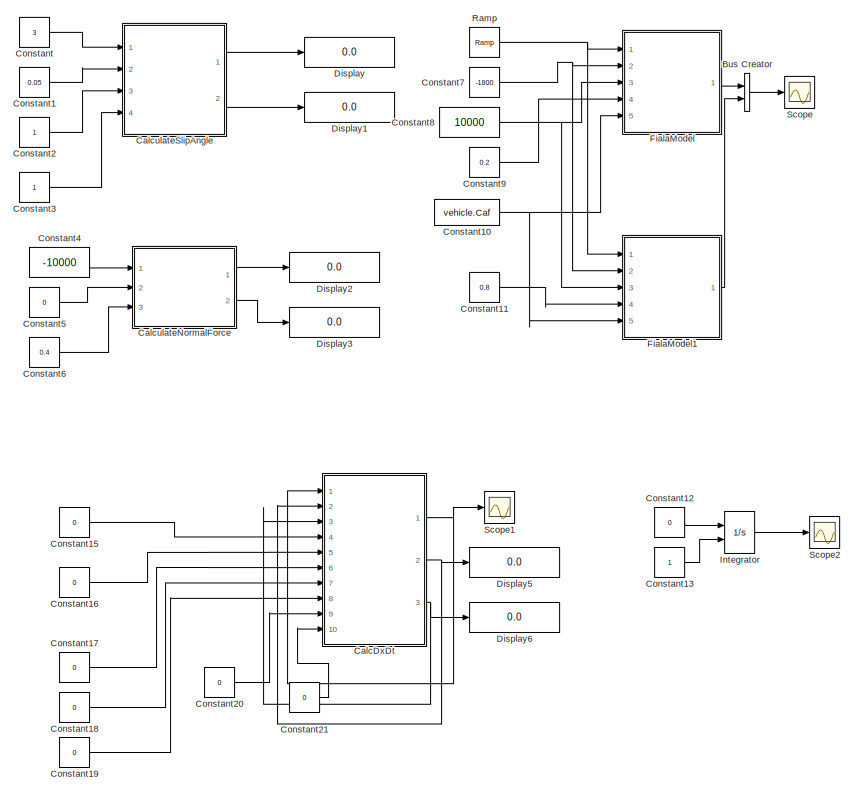
[diagram: root canvas - part 1/3, middle right region]
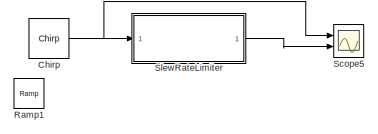
[diagram: root canvas - part 2/3, middle left region]
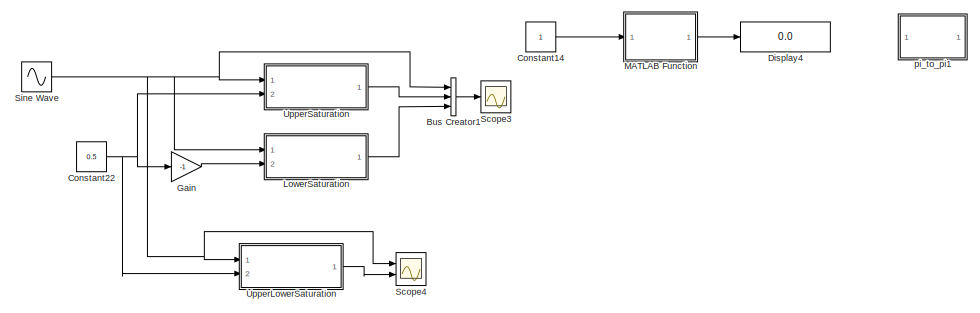
[diagram: root canvas - part 3/3, bottom center region]
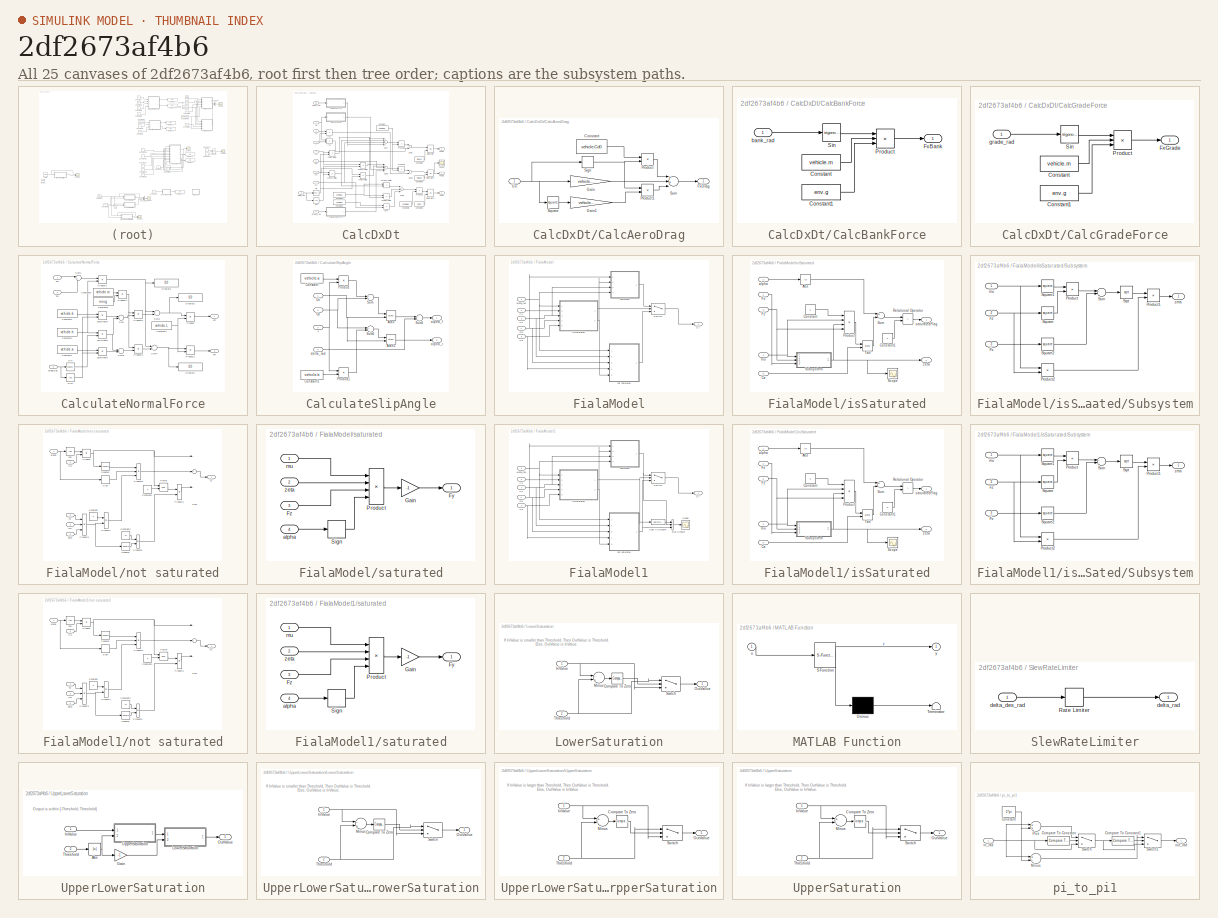
[diagram: thumbnail index - all 25 canvases of the model, root first then tree order]
MODEL slx_2df2673af4b6
KIND model
CONFIG AbsTol = auto
CONFIG EnableMultiTasking = off
CONFIG FixedStep = 0.001
CONFIG MaxStep = auto
CONFIG MinStep = auto
CONFIG RelTol = 1e-3
CONFIG SampleTimeConstraint = Unconstrained
CONFIG Solver = ode1
CONFIG SolverName = ode1
CONFIG StartTime = 0.0
CONFIG StopTime = 50.0
BLOCK [BusCreator] Bus Creator
  DisplayOption = bar
  InheritFromInputs = on
  Inputs = 2
  Ports = [2, 1]
BLOCK [BusCreator] Bus Creator1
  DisplayOption = bar
  InheritFromInputs = on
  Inputs = 3
  Ports = [3, 1]
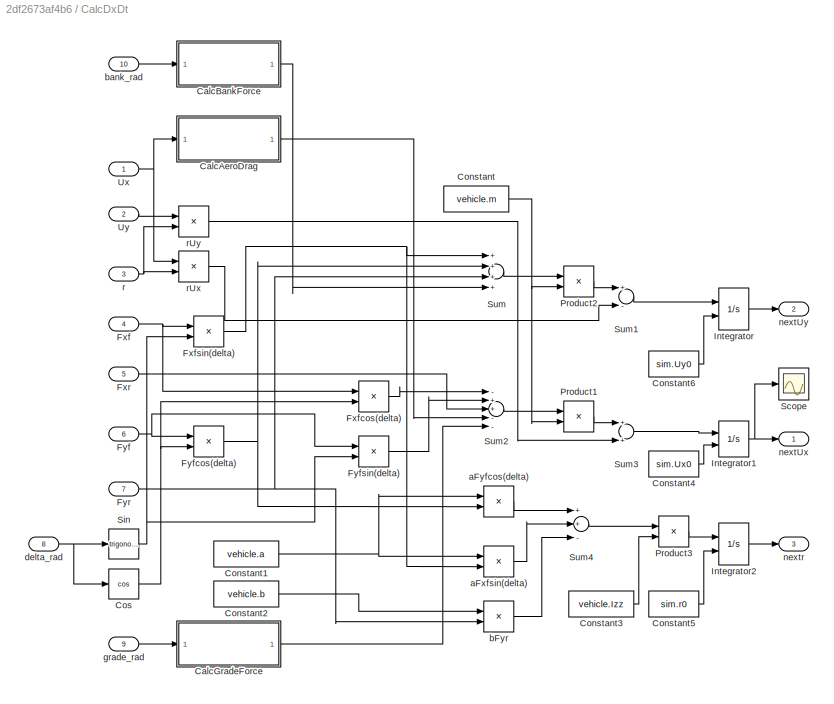
BLOCK [SubSystem] CalcDxDt
  Ports = [10, 3]
  RequestExecContextInheritance = off
BLOCK [SubSystem] CalcDxDt/CalcAeroDrag
  Ports = [1, 1]
  RequestExecContextInheritance = off
BLOCK [Constant] CalcDxDt/CalcAeroDrag/Constant
  Value = vehicle.Cd0
BLOCK [Outport] CalcDxDt/CalcAeroDrag/FxDrag
  IconDisplay = Port number
BLOCK [Gain] CalcDxDt/CalcAeroDrag/Gain
  Gain = vehicle.Cd1
  OutDataTypeStr = Inherit: Inherit via internal rule
  ParamDataTypeStr = Inherit: Inherit via internal rule
  SaturateOnIntegerOverflow = off
BLOCK [Gain] CalcDxDt/CalcAeroDrag/Gain1
  Gain = vehicle.Cd2
  OutDataTypeStr = Inherit: Inherit via internal rule
  ParamDataTypeStr = Inherit: Inherit via internal rule
  SaturateOnIntegerOverflow = off
BLOCK [Product] CalcDxDt/CalcAeroDrag/Product
  InputSameDT = off
  OutDataTypeStr = Inherit: Inherit via internal rule
  Ports = [2, 1]
  RndMeth = Floor
  SaturateOnIntegerOverflow = off
BLOCK [Product] CalcDxDt/CalcAeroDrag/Product1
  InputSameDT = off
  OutDataTypeStr = Inherit: Inherit via internal rule
  Ports = [2, 1]
  RndMeth = Floor
  SaturateOnIntegerOverflow = off
BLOCK [Signum] CalcDxDt/CalcAeroDrag/Sign
BLOCK [Math] CalcDxDt/CalcAeroDrag/Square
  Operator = square
  Ports = [1, 1]
BLOCK [Sum] CalcDxDt/CalcAeroDrag/Sum
  InputSameDT = off
  Inputs = 3
  OutDataTypeStr = Inherit: Inherit via internal rule
  Ports = [3, 1]
  SaturateOnIntegerOverflow = off
BLOCK [Inport] CalcDxDt/CalcAeroDrag/Ux
  IconDisplay = Port number
BLOCK [SubSystem] CalcDxDt/CalcBankForce
  Ports = [1, 1]
  RequestExecContextInheritance = off
BLOCK [Constant] CalcDxDt/CalcBankForce/Constant
  Value = vehicle.m
BLOCK [Constant] CalcDxDt/CalcBankForce/Constant1
  Value = env.g
BLOCK [Outport] CalcDxDt/CalcBankForce/FxBank
  IconDisplay = Port number
BLOCK [Product] CalcDxDt/CalcBankForce/Product
  InputSameDT = off
  Inputs = 3
  OutDataTypeStr = Inherit: Inherit via internal rule
  Ports = [3, 1]
  RndMeth = Floor
  SaturateOnIntegerOverflow = off
BLOCK [Trigonometry] CalcDxDt/CalcBankForce/Sin
  Ports = [1, 1]
BLOCK [Inport] CalcDxDt/CalcBankForce/bank_rad
  IconDisplay = Port number
BLOCK [SubSystem] CalcDxDt/CalcGradeForce
  Ports = [1, 1]
  RequestExecContextInheritance = off
BLOCK [Constant] CalcDxDt/CalcGradeForce/Constant
  Value = vehicle.m
BLOCK [Constant] CalcDxDt/CalcGradeForce/Constant1
  Value = env.g
BLOCK [Outport] CalcDxDt/CalcGradeForce/FxGrade
  IconDisplay = Port number
BLOCK [Product] CalcDxDt/CalcGradeForce/Product
  InputSameDT = off
  Inputs = 3
  OutDataTypeStr = Inherit: Inherit via internal rule
  Ports = [3, 1]
  RndMeth = Floor
  SaturateOnIntegerOverflow = off
BLOCK [Trigonometry] CalcDxDt/CalcGradeForce/Sin
  Ports = [1, 1]
BLOCK [Inport] CalcDxDt/CalcGradeForce/grade_rad
  IconDisplay = Port number
BLOCK [Constant] CalcDxDt/Constant
  Value = vehicle.m
BLOCK [Constant] CalcDxDt/Constant1
  Value = vehicle.a
BLOCK [Constant] CalcDxDt/Constant2
  Value = vehicle.b
BLOCK [Constant] CalcDxDt/Constant3
  Value = vehicle.Izz
BLOCK [Constant] CalcDxDt/Constant4
  Value = sim.Ux0
BLOCK [Constant] CalcDxDt/Constant5
  Value = sim.r0
BLOCK [Constant] CalcDxDt/Constant6
  Value = sim.Uy0
BLOCK [Trigonometry] CalcDxDt/Cos
  Operator = cos
  Ports = [1, 1]
BLOCK [Inport] CalcDxDt/Fxf
  IconDisplay = Port number
  Port = 4
BLOCK [Product] CalcDxDt/Fxfcos(delta)
  InputSameDT = off
  OutDataTypeStr = Inherit: Inherit via internal rule
  Ports = [2, 1]
  RndMeth = Floor
  SaturateOnIntegerOverflow = off
BLOCK [Product] CalcDxDt/Fxfsin(delta)
  InputSameDT = off
  OutDataTypeStr = Inherit: Inherit via internal rule
  Ports = [2, 1]
  RndMeth = Floor
  SaturateOnIntegerOverflow = off
BLOCK [Inport] CalcDxDt/Fxr
  IconDisplay = Port number
  Port = 5
BLOCK [Inport] CalcDxDt/Fyf
  IconDisplay = Port number
  Port = 6
BLOCK [Product] CalcDxDt/Fyfcos(delta)
  InputSameDT = off
  OutDataTypeStr = Inherit: Inherit via internal rule
  Ports = [2, 1]
  RndMeth = Floor
  SaturateOnIntegerOverflow = off
BLOCK [Product] CalcDxDt/Fyfsin(delta)
  InputSameDT = off
  OutDataTypeStr = Inherit: Inherit via internal rule
  Ports = [2, 1]
  RndMeth = Floor
  SaturateOnIntegerOverflow = off
BLOCK [Inport] CalcDxDt/Fyr
  IconDisplay = Port number
  Port = 7
BLOCK [Integrator] CalcDxDt/Integrator
  InitialConditionSource = external
  Ports = [2, 1]
BLOCK [Integrator] CalcDxDt/Integrator1
  InitialConditionSource = external
  Ports = [2, 1]
BLOCK [Integrator] CalcDxDt/Integrator2
  InitialCondition = sim.r0
  InitialConditionSource = external
  Ports = [2, 1]
BLOCK [Product] CalcDxDt/Product1
  InputSameDT = off
  Inputs = */
  OutDataTypeStr = Inherit: Inherit via internal rule
  Ports = [2, 1]
  RndMeth = Floor
  SaturateOnIntegerOverflow = off
BLOCK [Product] CalcDxDt/Product2
  InputSameDT = off
  Inputs = */
  OutDataTypeStr = Inherit: Inherit via internal rule
  Ports = [2, 1]
  RndMeth = Floor
  SaturateOnIntegerOverflow = off
BLOCK [Product] CalcDxDt/Product3
  InputSameDT = off
  Inputs = */
  OutDataTypeStr = Inherit: Inherit via internal rule
  Ports = [2, 1]
  RndMeth = Floor
  SaturateOnIntegerOverflow = off
BLOCK [Scope] CalcDxDt/Scope
  Floating = off
  NumInputPorts = 1
  Ports = [1]
  ScopeSpecificationString = Simulink.scopes.TimeScopeBlockCfg('CurrentConfiguration', extmgr.ConfigurationSet(extmgr.Configuration('Core','General UI',true),extmgr.Configuration('Core','Source UI',true),extmgr.Configuration('Sources','WiredSimulink',true,'DataLoggingVariableName','ScopeData4'),extmgr.Configuration('Visuals','Time Domain',true),extmgr.Configuration('Tools','Plot Navigation',true),extmgr.Configuration('Tools',...<+40ch>
BLOCK [Trigonometry] CalcDxDt/Sin
  Ports = [1, 1]
BLOCK [Sum] CalcDxDt/Sum
  InputSameDT = off
  Inputs = ++++
  OutDataTypeStr = Inherit: Inherit via internal rule
  Ports = [4, 1]
  SaturateOnIntegerOverflow = off
BLOCK [Sum] CalcDxDt/Sum1
  InputSameDT = off
  Inputs = +-
  OutDataTypeStr = Inherit: Inherit via internal rule
  Ports = [2, 1]
  SaturateOnIntegerOverflow = off
BLOCK [Sum] CalcDxDt/Sum2
  InputSameDT = off
  Inputs = -++--
  OutDataTypeStr = Inherit: Inherit via internal rule
  Ports = [5, 1]
  SaturateOnIntegerOverflow = off
BLOCK [Sum] CalcDxDt/Sum3
  InputSameDT = off
  OutDataTypeStr = Inherit: Inherit via internal rule
  Ports = [2, 1]
  SaturateOnIntegerOverflow = off
BLOCK [Sum] CalcDxDt/Sum4
  InputSameDT = off
  Inputs = ++-
  OutDataTypeStr = Inherit: Inherit via internal rule
  Ports = [3, 1]
  SaturateOnIntegerOverflow = off
BLOCK [Inport] CalcDxDt/Ux
  IconDisplay = Port number
BLOCK [Inport] CalcDxDt/Uy
  IconDisplay = Port number
  Port = 2
BLOCK [Product] CalcDxDt/aFxfsin(delta)
  InputSameDT = off
  OutDataTypeStr = Inherit: Inherit via internal rule
  Ports = [2, 1]
  RndMeth = Floor
  SaturateOnIntegerOverflow = off
BLOCK [Product] CalcDxDt/aFyfcos(delta)
  InputSameDT = off
  OutDataTypeStr = Inherit: Inherit via internal rule
  Ports = [2, 1]
  RndMeth = Floor
  SaturateOnIntegerOverflow = off
BLOCK [Product] CalcDxDt/bFyr
  InputSameDT = off
  OutDataTypeStr = Inherit: Inherit via internal rule
  Ports = [2, 1]
  RndMeth = Floor
  SaturateOnIntegerOverflow = off
BLOCK [Inport] CalcDxDt/bank_rad
  IconDisplay = Port number
  Port = 10
BLOCK [Inport] CalcDxDt/delta_rad
  IconDisplay = Port number
  Port = 8
BLOCK [Inport] CalcDxDt/grade_rad
  IconDisplay = Port number
  Port = 9
BLOCK [Outport] CalcDxDt/nextUx 
  IconDisplay = Port number
BLOCK [Outport] CalcDxDt/nextUy
  IconDisplay = Port number
  Port = 2
BLOCK [Outport] CalcDxDt/nextr
  IconDisplay = Port number
  Port = 3
BLOCK [Inport] CalcDxDt/r
  IconDisplay = Port number
  Port = 3
BLOCK [Product] CalcDxDt/rUx
  InputSameDT = off
  OutDataTypeStr = Inherit: Inherit via internal rule
  Ports = [2, 1]
  RndMeth = Floor
  SaturateOnIntegerOverflow = off
BLOCK [Product] CalcDxDt/rUy
  InputSameDT = off
  OutDataTypeStr = Inherit: Inherit via internal rule
  Ports = [2, 1]
  RndMeth = Floor
  SaturateOnIntegerOverflow = off
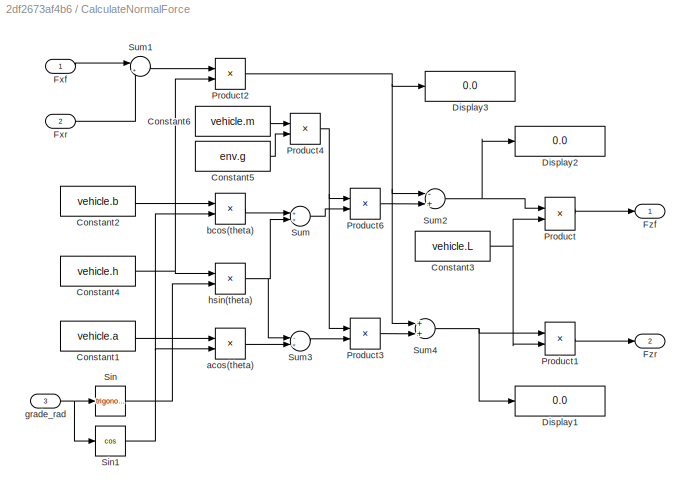
BLOCK [SubSystem] CalculateNormalForce
  Ports = [3, 2]
  RequestExecContextInheritance = off
BLOCK [Constant] CalculateNormalForce/Constant1
  Value = vehicle.a
BLOCK [Constant] CalculateNormalForce/Constant2
  Value = vehicle.b
BLOCK [Constant] CalculateNormalForce/Constant3
  Value = vehicle.L
BLOCK [Constant] CalculateNormalForce/Constant4
  Value = vehicle.h
BLOCK [Constant] CalculateNormalForce/Constant5
  Value = env.g
BLOCK [Constant] CalculateNormalForce/Constant6
  Value = vehicle.m
BLOCK [Display] CalculateNormalForce/Display1
  Decimation = 1
  Ports = [1]
BLOCK [Display] CalculateNormalForce/Display2
  Decimation = 1
  Ports = [1]
BLOCK [Display] CalculateNormalForce/Display3
  Decimation = 1
  Ports = [1]
BLOCK [Inport] CalculateNormalForce/Fxf
  IconDisplay = Port number
BLOCK [Inport] CalculateNormalForce/Fxr
  IconDisplay = Port number
  Port = 2
BLOCK [Outport] CalculateNormalForce/Fzf
  IconDisplay = Port number
BLOCK [Outport] CalculateNormalForce/Fzr
  IconDisplay = Port number
  Port = 2
BLOCK [Product] CalculateNormalForce/Product
  InputSameDT = off
  Inputs = */
  OutDataTypeStr = Inherit: Inherit via internal rule
  Ports = [2, 1]
  RndMeth = Floor
  SaturateOnIntegerOverflow = off
BLOCK [Product] CalculateNormalForce/Product1
  InputSameDT = off
  Inputs = */
  OutDataTypeStr = Inherit: Inherit via internal rule
  Ports = [2, 1]
  RndMeth = Floor
  SaturateOnIntegerOverflow = off
BLOCK [Product] CalculateNormalForce/Product2
  InputSameDT = off
  OutDataTypeStr = Inherit: Inherit via internal rule
  Ports = [2, 1]
  RndMeth = Floor
  SaturateOnIntegerOverflow = off
BLOCK [Product] CalculateNormalForce/Product3
  InputSameDT = off
  OutDataTypeStr = Inherit: Inherit via internal rule
  Ports = [2, 1]
  RndMeth = Floor
  SaturateOnIntegerOverflow = off
BLOCK [Product] CalculateNormalForce/Product4
  InputSameDT = off
  OutDataTypeStr = Inherit: Inherit via internal rule
  Ports = [2, 1]
  RndMeth = Floor
  SaturateOnIntegerOverflow = off
BLOCK [Product] CalculateNormalForce/Product6
  InputSameDT = off
  OutDataTypeStr = Inherit: Inherit via internal rule
  Ports = [2, 1]
  RndMeth = Floor
  SaturateOnIntegerOverflow = off
BLOCK [Trigonometry] CalculateNormalForce/Sin
  Ports = [1, 1]
BLOCK [Trigonometry] CalculateNormalForce/Sin1
  Operator = cos
  Ports = [1, 1]
BLOCK [Sum] CalculateNormalForce/Sum
  InputSameDT = off
  OutDataTypeStr = Inherit: Inherit via internal rule
  Ports = [2, 1]
  SaturateOnIntegerOverflow = off
BLOCK [Sum] CalculateNormalForce/Sum1
  IconShape = round
  InputSameDT = off
  Inputs = |++
  OutDataTypeStr = Inherit: Inherit via internal rule
  Ports = [2, 1]
  SaturateOnIntegerOverflow = off
BLOCK [Sum] CalculateNormalForce/Sum2
  InputSameDT = off
  Inputs = -+
  OutDataTypeStr = Inherit: Inherit via internal rule
  Ports = [2, 1]
  SaturateOnIntegerOverflow = off
BLOCK [Sum] CalculateNormalForce/Sum3
  InputSameDT = off
  Inputs = -+
  OutDataTypeStr = Inherit: Inherit via internal rule
  Ports = [2, 1]
  SaturateOnIntegerOverflow = off
BLOCK [Sum] CalculateNormalForce/Sum4
  InputSameDT = off
  OutDataTypeStr = Inherit: Inherit via internal rule
  Ports = [2, 1]
  SaturateOnIntegerOverflow = off
BLOCK [Product] CalculateNormalForce/acos(theta)
  InputSameDT = off
  OutDataTypeStr = Inherit: Inherit via internal rule
  Ports = [2, 1]
  RndMeth = Floor
  SaturateOnIntegerOverflow = off
BLOCK [Product] CalculateNormalForce/bcos(theta)
  InputSameDT = off
  OutDataTypeStr = Inherit: Inherit via internal rule
  Ports = [2, 1]
  RndMeth = Floor
  SaturateOnIntegerOverflow = off
BLOCK [Inport] CalculateNormalForce/grade_rad
  IconDisplay = Port number
  Port = 3
BLOCK [Product] CalculateNormalForce/hsin(theta)
  InputSameDT = off
  OutDataTypeStr = Inherit: Inherit via internal rule
  Ports = [2, 1]
  RndMeth = Floor
  SaturateOnIntegerOverflow = off
BLOCK [SubSystem] CalculateSlipAngle
  Ports = [4, 2]
  RequestExecContextInheritance = off
BLOCK [Trigonometry] CalculateSlipAngle/Atan
  Operator = atan2
  Ports = [2, 1]
BLOCK [Trigonometry] CalculateSlipAngle/Atan1
  Operator = atan2
  Ports = [2, 1]
BLOCK [Constant] CalculateSlipAngle/Constant
  Value = vehicle.a
BLOCK [Constant] CalculateSlipAngle/Constant1
  Value = vehicle.b
BLOCK [Product] CalculateSlipAngle/Product
  InputSameDT = off
  OutDataTypeStr = Inherit: Inherit via internal rule
  Ports = [2, 1]
  RndMeth = Floor
  SaturateOnIntegerOverflow = off
BLOCK [Product] CalculateSlipAngle/Product1
  InputSameDT = off
  OutDataTypeStr = Inherit: Inherit via internal rule
  Ports = [2, 1]
  RndMeth = Floor
  SaturateOnIntegerOverflow = off
BLOCK [Sum] CalculateSlipAngle/Sum
  InputSameDT = off
  OutDataTypeStr = Inherit: Inherit via internal rule
  Ports = [2, 1]
  SaturateOnIntegerOverflow = off
BLOCK [Sum] CalculateSlipAngle/Sum1
  InputSameDT = off
  Inputs = +-
  OutDataTypeStr = Inherit: Inherit via internal rule
  Ports = [2, 1]
  SaturateOnIntegerOverflow = off
BLOCK [Sum] CalculateSlipAngle/Sum2
  InputSameDT = off
  Inputs = +-
  OutDataTypeStr = Inherit: Inherit via internal rule
  Ports = [2, 1]
  SaturateOnIntegerOverflow = off
BLOCK [Inport] CalculateSlipAngle/Ux
  IconDisplay = Port number
BLOCK [Inport] CalculateSlipAngle/Uy
  IconDisplay = Port number
  Port = 2
BLOCK [Outport] CalculateSlipAngle/alpha_f
  IconDisplay = Port number
BLOCK [Outport] CalculateSlipAngle/alpha_r
  IconDisplay = Port number
  Port = 2
BLOCK [Inport] CalculateSlipAngle/delta_rad
  IconDisplay = Port number
  Port = 4
BLOCK [Inport] CalculateSlipAngle/r
  IconDisplay = Port number
  Port = 3
BLOCK [Reference] Chirp  REF=dspsrcs4/Chirp
  Ports = [0, 1]
  SourceBlock = dspsrcs4/Chirp
  SourceProductBaseCode = DS
  SourceProductName = DSP System Toolbox
  SourceType = Chirp
BLOCK [Constant] Constant
  Value = 3
BLOCK [Constant] Constant1
  Value = 0.05
BLOCK [Constant] Constant10
  Value = vehicle.Caf
BLOCK [Constant] Constant11
  Value = 0.8
BLOCK [Constant] Constant12
  Value = 0
BLOCK [Constant] Constant13
BLOCK [Constant] Constant14
BLOCK [Constant] Constant15
  Value = 0
BLOCK [Constant] Constant16
  Value = 0
BLOCK [Constant] Constant17
  Value = 0
BLOCK [Constant] Constant18
  Value = 0
BLOCK [Constant] Constant19
  Value = 0
BLOCK [Constant] Constant2
BLOCK [Constant] Constant20
  Value = 0
BLOCK [Constant] Constant21
  Value = 0
BLOCK [Constant] Constant22
  Value = 0.5
BLOCK [Constant] Constant3
BLOCK [Constant] Constant4
  Value = -10000
BLOCK [Constant] Constant5
  Value = 0
BLOCK [Constant] Constant6
  Value = 0.4
BLOCK [Constant] Constant7
  Value = -1800
BLOCK [Constant] Constant8
  Value = 10000
BLOCK [Constant] Constant9
  Value = 0.2
BLOCK [Display] Display
  Decimation = 1
  Ports = [1]
BLOCK [Display] Display1
  Decimation = 1
  Ports = [1]
BLOCK [Display] Display2
  Decimation = 1
  Ports = [1]
BLOCK [Display] Display3
  Decimation = 1
  Ports = [1]
BLOCK [Display] Display4
  Decimation = 1
  Ports = [1]
BLOCK [Display] Display5
  Decimation = 1
  Ports = [1]
BLOCK [Display] Display6
  Decimation = 1
  Ports = [1]
BLOCK [SubSystem] FialaModel
  Ports = [5, 1]
  RequestExecContextInheritance = off
BLOCK [Inport] FialaModel/Ca
  IconDisplay = Port number
  Port = 5
BLOCK [Inport] FialaModel/Fx
  IconDisplay = Port number
  Port = 2
BLOCK [Outport] FialaModel/Fy
  IconDisplay = Port number
BLOCK [Inport] FialaModel/Fz
  IconDisplay = Port number
  Port = 3
BLOCK [Switch] FialaModel/Switch
  Criteria = u2 > Threshold
  InputSameDT = off
  SaturateOnIntegerOverflow = off
BLOCK [Inport] FialaModel/alpha_rad
  IconDisplay = Port number
BLOCK [SubSystem] FialaModel/isSaturated
  Ports = [5, 2]
  RequestExecContextInheritance = off
BLOCK [Abs] FialaModel/isSaturated/Abs
  SaturateOnIntegerOverflow = off
BLOCK [Inport] FialaModel/isSaturated/Ca
  IconDisplay = Port number
  Port = 5
BLOCK [Constant] FialaModel/isSaturated/Constant
  Value = 3
BLOCK [Constant] FialaModel/isSaturated/Constant1
  Value = 0
BLOCK [Inport] FialaModel/isSaturated/Fx
  IconDisplay = Port number
  Port = 2
BLOCK [Inport] FialaModel/isSaturated/Fz
  IconDisplay = Port number
  Port = 3
BLOCK [Product] FialaModel/isSaturated/Product
  InputSameDT = off
  Inputs = 4
  OutDataTypeStr = Inherit: Inherit via internal rule
  Ports = [4, 1]
  RndMeth = Floor
  SaturateOnIntegerOverflow = off
BLOCK [RelationalOperator] FialaModel/isSaturated/Relational Operator
  InputSameDT = off
  Operator = >
  OutDataTypeStr = boolean
  Ports = [2, 1]
  RndMeth = Simplest
BLOCK [Scope] FialaModel/isSaturated/Scope
  Floating = off
  NumInputPorts = 1
  Ports = [1]
  ScopeSpecificationString = Simulink.scopes.TimeScopeBlockCfg('CurrentConfiguration', extmgr.ConfigurationSet(extmgr.Configuration('Core','General UI',true),extmgr.Configuration('Core','Source UI',true),extmgr.Configuration('Sources','WiredSimulink',true,'DataLoggingVariableName','ScopeData2'),extmgr.Configuration('Visuals','Time Domain',true,'SerializedDisplays',{struct('MinYLimReal','0.33589','MaxYLimReal','0.53589','YLabe...<+1366ch>
BLOCK [SubSystem] FialaModel/isSaturated/Subsystem
  Ports = [3, 1]
  RequestExecContextInheritance = off
BLOCK [Inport] FialaModel/isSaturated/Subsystem/Fx
  IconDisplay = Port number
  Port = 3
BLOCK [Inport] FialaModel/isSaturated/Subsystem/Fz
  IconDisplay = Port number
  Port = 2
BLOCK [Product] FialaModel/isSaturated/Subsystem/Product
  InputSameDT = off
  OutDataTypeStr = Inherit: Inherit via internal rule
  Ports = [2, 1]
  RndMeth = Floor
  SaturateOnIntegerOverflow = off
BLOCK [Product] FialaModel/isSaturated/Subsystem/Product1
  InputSameDT = off
  Inputs = */
  OutDataTypeStr = Inherit: Inherit via internal rule
  Ports = [2, 1]
  RndMeth = Floor
  SaturateOnIntegerOverflow = off
BLOCK [Product] FialaModel/isSaturated/Subsystem/Product2
  InputSameDT = off
  OutDataTypeStr = Inherit: Inherit via internal rule
  Ports = [2, 1]
  RndMeth = Floor
  SaturateOnIntegerOverflow = off
BLOCK [Sqrt] FialaModel/isSaturated/Subsystem/Sqrt
BLOCK [Math] FialaModel/isSaturated/Subsystem/Square
  Operator = square
  Ports = [1, 1]
BLOCK [Math] FialaModel/isSaturated/Subsystem/Square1
  Operator = square
  Ports = [1, 1]
BLOCK [Math] FialaModel/isSaturated/Subsystem/Square2
  Operator = square
  Ports = [1, 1]
BLOCK [Sum] FialaModel/isSaturated/Subsystem/Sum
  InputSameDT = off
  Inputs = +-
  OutDataTypeStr = Inherit: Inherit via internal rule
  Ports = [2, 1]
  SaturateOnIntegerOverflow = off
BLOCK [Inport] FialaModel/isSaturated/Subsystem/mu
  IconDisplay = Port number
BLOCK [Outport] FialaModel/isSaturated/Subsystem/zeta
  IconDisplay = Port number
BLOCK [Sum] FialaModel/isSaturated/Sum
  InputSameDT = off
  Inputs = +-
  OutDataTypeStr = Inherit: Inherit via internal rule
  Ports = [2, 1]
  SaturateOnIntegerOverflow = off
BLOCK [Trigonometry] FialaModel/isSaturated/Tan
  Operator = atan2
  Ports = [2, 1]
BLOCK [Inport] FialaModel/isSaturated/alpha
  IconDisplay = Port number
BLOCK [Inport] FialaModel/isSaturated/mu
  IconDisplay = Port number
  Port = 4
BLOCK [Outport] FialaModel/isSaturated/saturatedFlag
  IconDisplay = Port number
BLOCK [Outport] FialaModel/isSaturated/zeta
  IconDisplay = Port number
  Port = 2
BLOCK [Inport] FialaModel/mu
  IconDisplay = Port number
  Port = 4
BLOCK [SubSystem] FialaModel/not saturated
  Ports = [5, 1]
  RequestExecContextInheritance = off
BLOCK [Inport] FialaModel/not saturated/Ca
  IconDisplay = Port number
  Port = 4
BLOCK [Constant] FialaModel/not saturated/Constant
  Value = 3
BLOCK [Constant] FialaModel/not saturated/Constant1
  Value = 3
BLOCK [Constant] FialaModel/not saturated/Constant2
  Value = 27
BLOCK [Outport] FialaModel/not saturated/Fy
  IconDisplay = Port number
BLOCK [Inport] FialaModel/not saturated/Fz
  IconDisplay = Port number
  Port = 2
BLOCK [Math] FialaModel/not saturated/Power
  Operator = pow
  Ports = [2, 1]
BLOCK [Product] FialaModel/not saturated/Product
  InputSameDT = off
  OutDataTypeStr = Inherit: Inherit via internal rule
  Ports = [2, 1]
  RndMeth = Floor
  SaturateOnIntegerOverflow = off
BLOCK [Product] FialaModel/not saturated/Product1
  InputSameDT = off
  Inputs = */
  OutDataTypeStr = Inherit: Inherit via internal rule
  Ports = [2, 1]
  RndMeth = Floor
  SaturateOnIntegerOverflow = off
BLOCK [Product] FialaModel/not saturated/Product2
  InputSameDT = off
  Inputs = **/
  OutDataTypeStr = Inherit: Inherit via internal rule
  Ports = [3, 1]
  RndMeth = Floor
  SaturateOnIntegerOverflow = off
BLOCK [Product] FialaModel/not saturated/Product3
  InputSameDT = off
  Inputs = ***
  OutDataTypeStr = Inherit: Inherit via internal rule
  Ports = [3, 1]
  RndMeth = Floor
  SaturateOnIntegerOverflow = off
BLOCK [Product] FialaModel/not saturated/Product4
  InputSameDT = off
  OutDataTypeStr = Inherit: Inherit via internal rule
  Ports = [2, 1]
  RndMeth = Floor
  SaturateOnIntegerOverflow = off
BLOCK [Product] FialaModel/not saturated/Product5
  InputSameDT = off
  OutDataTypeStr = Inherit: Inherit via internal rule
  Ports = [2, 1]
  RndMeth = Floor
  SaturateOnIntegerOverflow = off
BLOCK [Signum] FialaModel/not saturated/Sign
BLOCK [Math] FialaModel/not saturated/Square1
  Operator = square
  Ports = [1, 1]
BLOCK [Math] FialaModel/not saturated/Square2
  Operator = square
  Ports = [1, 1]
BLOCK [Sum] FialaModel/not saturated/Sum
  InputSameDT = off
  Inputs = -+-
  OutDataTypeStr = Inherit: Inherit via internal rule
  Ports = [3, 1]
  SaturateOnIntegerOverflow = off
BLOCK [Trigonometry] FialaModel/not saturated/Tan
  Operator = tan
  Ports = [1, 1]
BLOCK [Inport] FialaModel/not saturated/alpha
  IconDisplay = Port number
BLOCK [Inport] FialaModel/not saturated/mu
  IconDisplay = Port number
  Port = 3
BLOCK [Inport] FialaModel/not saturated/zeta
  IconDisplay = Port number
  Port = 5
BLOCK [SubSystem] FialaModel/saturated
  Ports = [4, 1]
  RequestExecContextInheritance = off
BLOCK [Outport] FialaModel/saturated/Fy
  IconDisplay = Port number
BLOCK [Inport] FialaModel/saturated/Fz
  IconDisplay = Port number
  Port = 3
BLOCK [Gain] FialaModel/saturated/Gain
  Gain = -1
  OutDataTypeStr = Inherit: Inherit via internal rule
  ParamDataTypeStr = Inherit: Inherit via internal rule
  SaturateOnIntegerOverflow = off
BLOCK [Product] FialaModel/saturated/Product
  InputSameDT = off
  Inputs = 4
  OutDataTypeStr = Inherit: Inherit via internal rule
  Ports = [4, 1]
  RndMeth = Floor
  SaturateOnIntegerOverflow = off
BLOCK [Signum] FialaModel/saturated/Sign
BLOCK [Inport] FialaModel/saturated/alpha
  IconDisplay = Port number
  Port = 4
BLOCK [Inport] FialaModel/saturated/mu
  IconDisplay = Port number
BLOCK [Inport] FialaModel/saturated/zeta
  IconDisplay = Port number
  Port = 2
BLOCK [SubSystem] FialaModel1
  Ports = [5, 1]
  RequestExecContextInheritance = off
BLOCK [BusCreator] FialaModel1/Bus Creator
  DisplayOption = bar
  InheritFromInputs = on
  Inputs = 3
  Ports = [3, 1]
BLOCK [Inport] FialaModel1/Ca
  IconDisplay = Port number
  Port = 5
BLOCK [DataTypeConversion] FialaModel1/Cast To Double
  OutDataTypeStr = double
  RndMeth = Floor
  SaturateOnIntegerOverflow = off
BLOCK [Inport] FialaModel1/Fx
  IconDisplay = Port number
  Port = 2
BLOCK [Outport] FialaModel1/Fy
  IconDisplay = Port number
BLOCK [Inport] FialaModel1/Fz
  IconDisplay = Port number
  Port = 3
BLOCK [Scope] FialaModel1/Scope
  Floating = off
  NumInputPorts = 1
  Ports = [1]
  ScopeSpecificationString = Simulink.scopes.TimeScopeBlockCfg('CurrentConfiguration', extmgr.ConfigurationSet(extmgr.Configuration('Core','General UI',true),extmgr.Configuration('Core','Source UI',true),extmgr.Configuration('Sources','WiredSimulink',true,'DataLoggingVariableName','ScopeData1'),extmgr.Configuration('Visuals','Time Domain',true,'SerializedDisplays',{struct('MinYLimReal','-7.88068','MaxYLimReal','8.38222','YLab...<+1449ch>
BLOCK [Switch] FialaModel1/Switch
  Criteria = u2 > Threshold
  InputSameDT = off
  SaturateOnIntegerOverflow = off
BLOCK [Inport] FialaModel1/alpha_rad
  IconDisplay = Port number
BLOCK [SubSystem] FialaModel1/isSaturated
  Ports = [5, 2]
  RequestExecContextInheritance = off
BLOCK [Abs] FialaModel1/isSaturated/Abs
  SaturateOnIntegerOverflow = off
BLOCK [Inport] FialaModel1/isSaturated/Ca
  IconDisplay = Port number
  Port = 5
BLOCK [Constant] FialaModel1/isSaturated/Constant
  Value = 3
BLOCK [Constant] FialaModel1/isSaturated/Constant1
  Value = 0
BLOCK [Inport] FialaModel1/isSaturated/Fx
  IconDisplay = Port number
  Port = 2
BLOCK [Inport] FialaModel1/isSaturated/Fz
  IconDisplay = Port number
  Port = 3
BLOCK [Product] FialaModel1/isSaturated/Product
  InputSameDT = off
  Inputs = 4
  OutDataTypeStr = Inherit: Inherit via internal rule
  Ports = [4, 1]
  RndMeth = Floor
  SaturateOnIntegerOverflow = off
BLOCK [RelationalOperator] FialaModel1/isSaturated/Relational Operator
  InputSameDT = off
  Operator = >
  OutDataTypeStr = boolean
  Ports = [2, 1]
  RndMeth = Simplest
BLOCK [Scope] FialaModel1/isSaturated/Scope
  Floating = off
  NumInputPorts = 1
  Ports = [1]
  ScopeSpecificationString = Simulink.scopes.TimeScopeBlockCfg('CurrentConfiguration', extmgr.ConfigurationSet(extmgr.Configuration('Core','General UI',true),extmgr.Configuration('Core','Source UI',true),extmgr.Configuration('Sources','WiredSimulink',true,'DataLoggingVariableName','ScopeData2'),extmgr.Configuration('Visuals','Time Domain',true,'SerializedDisplays',{struct('MinYLimReal','0.00000','MaxYLimReal','2.00000','YLabe...<+1366ch>
BLOCK [SubSystem] FialaModel1/isSaturated/Subsystem
  Ports = [3, 1]
  RequestExecContextInheritance = off
BLOCK [Inport] FialaModel1/isSaturated/Subsystem/Fx
  IconDisplay = Port number
  Port = 3
BLOCK [Inport] FialaModel1/isSaturated/Subsystem/Fz
  IconDisplay = Port number
  Port = 2
BLOCK [Product] FialaModel1/isSaturated/Subsystem/Product
  InputSameDT = off
  OutDataTypeStr = Inherit: Inherit via internal rule
  Ports = [2, 1]
  RndMeth = Floor
  SaturateOnIntegerOverflow = off
BLOCK [Product] FialaModel1/isSaturated/Subsystem/Product1
  InputSameDT = off
  Inputs = */
  OutDataTypeStr = Inherit: Inherit via internal rule
  Ports = [2, 1]
  RndMeth = Floor
  SaturateOnIntegerOverflow = off
BLOCK [Product] FialaModel1/isSaturated/Subsystem/Product2
  InputSameDT = off
  OutDataTypeStr = Inherit: Inherit via internal rule
  Ports = [2, 1]
  RndMeth = Floor
  SaturateOnIntegerOverflow = off
BLOCK [Sqrt] FialaModel1/isSaturated/Subsystem/Sqrt
BLOCK [Math] FialaModel1/isSaturated/Subsystem/Square
  Operator = square
  Ports = [1, 1]
BLOCK [Math] FialaModel1/isSaturated/Subsystem/Square1
  Operator = square
  Ports = [1, 1]
BLOCK [Math] FialaModel1/isSaturated/Subsystem/Square2
  Operator = square
  Ports = [1, 1]
BLOCK [Sum] FialaModel1/isSaturated/Subsystem/Sum
  InputSameDT = off
  Inputs = +-
  OutDataTypeStr = Inherit: Inherit via internal rule
  Ports = [2, 1]
  SaturateOnIntegerOverflow = off
BLOCK [Inport] FialaModel1/isSaturated/Subsystem/mu
  IconDisplay = Port number
BLOCK [Outport] FialaModel1/isSaturated/Subsystem/zeta
  IconDisplay = Port number
BLOCK [Sum] FialaModel1/isSaturated/Sum
  InputSameDT = off
  Inputs = +-
  OutDataTypeStr = Inherit: Inherit via internal rule
  Ports = [2, 1]
  SaturateOnIntegerOverflow = off
BLOCK [Trigonometry] FialaModel1/isSaturated/Tan
  Operator = atan2
  Ports = [2, 1]
BLOCK [Inport] FialaModel1/isSaturated/alpha
  IconDisplay = Port number
BLOCK [Inport] FialaModel1/isSaturated/mu
  IconDisplay = Port number
  Port = 4
BLOCK [Outport] FialaModel1/isSaturated/saturatedFlag
  IconDisplay = Port number
BLOCK [Outport] FialaModel1/isSaturated/zeta
  IconDisplay = Port number
  Port = 2
BLOCK [Inport] FialaModel1/mu
  IconDisplay = Port number
  Port = 4
BLOCK [SubSystem] FialaModel1/not saturated
  Ports = [5, 1]
  RequestExecContextInheritance = off
BLOCK [Inport] FialaModel1/not saturated/Ca
  IconDisplay = Port number
  Port = 4
BLOCK [Constant] FialaModel1/not saturated/Constant
  Value = 3
BLOCK [Constant] FialaModel1/not saturated/Constant1
  Value = 3
BLOCK [Constant] FialaModel1/not saturated/Constant2
  Value = 27
BLOCK [Outport] FialaModel1/not saturated/Fy
  IconDisplay = Port number
BLOCK [Inport] FialaModel1/not saturated/Fz
  IconDisplay = Port number
  Port = 2
BLOCK [Math] FialaModel1/not saturated/Power
  Operator = pow
  Ports = [2, 1]
BLOCK [Product] FialaModel1/not saturated/Product
  InputSameDT = off
  OutDataTypeStr = Inherit: Inherit via internal rule
  Ports = [2, 1]
  RndMeth = Floor
  SaturateOnIntegerOverflow = off
BLOCK [Product] FialaModel1/not saturated/Product1
  InputSameDT = off
  Inputs = */
  OutDataTypeStr = Inherit: Inherit via internal rule
  Ports = [2, 1]
  RndMeth = Floor
  SaturateOnIntegerOverflow = off
BLOCK [Product] FialaModel1/not saturated/Product2
  InputSameDT = off
  Inputs = **/
  OutDataTypeStr = Inherit: Inherit via internal rule
  Ports = [3, 1]
  RndMeth = Floor
  SaturateOnIntegerOverflow = off
BLOCK [Product] FialaModel1/not saturated/Product3
  InputSameDT = off
  Inputs = ***
  OutDataTypeStr = Inherit: Inherit via internal rule
  Ports = [3, 1]
  RndMeth = Floor
  SaturateOnIntegerOverflow = off
BLOCK [Product] FialaModel1/not saturated/Product4
  InputSameDT = off
  OutDataTypeStr = Inherit: Inherit via internal rule
  Ports = [2, 1]
  RndMeth = Floor
  SaturateOnIntegerOverflow = off
BLOCK [Product] FialaModel1/not saturated/Product5
  InputSameDT = off
  OutDataTypeStr = Inherit: Inherit via internal rule
  Ports = [2, 1]
  RndMeth = Floor
  SaturateOnIntegerOverflow = off
BLOCK [Signum] FialaModel1/not saturated/Sign
BLOCK [Math] FialaModel1/not saturated/Square1
  Operator = square
  Ports = [1, 1]
BLOCK [Math] FialaModel1/not saturated/Square2
  Operator = square
  Ports = [1, 1]
BLOCK [Sum] FialaModel1/not saturated/Sum
  InputSameDT = off
  Inputs = -+-
  OutDataTypeStr = Inherit: Inherit via internal rule
  Ports = [3, 1]
  SaturateOnIntegerOverflow = off
BLOCK [Trigonometry] FialaModel1/not saturated/Tan
  Operator = tan
  Ports = [1, 1]
BLOCK [Inport] FialaModel1/not saturated/alpha
  IconDisplay = Port number
BLOCK [Inport] FialaModel1/not saturated/mu
  IconDisplay = Port number
  Port = 3
BLOCK [Inport] FialaModel1/not saturated/zeta
  IconDisplay = Port number
  Port = 5
BLOCK [SubSystem] FialaModel1/saturated
  Ports = [4, 1]
  RequestExecContextInheritance = off
BLOCK [Outport] FialaModel1/saturated/Fy
  IconDisplay = Port number
BLOCK [Inport] FialaModel1/saturated/Fz
  IconDisplay = Port number
  Port = 3
BLOCK [Gain] FialaModel1/saturated/Gain
  Gain = -1
  OutDataTypeStr = Inherit: Inherit via internal rule
  ParamDataTypeStr = Inherit: Inherit via internal rule
  SaturateOnIntegerOverflow = off
BLOCK [Product] FialaModel1/saturated/Product
  InputSameDT = off
  Inputs = 4
  OutDataTypeStr = Inherit: Inherit via internal rule
  Ports = [4, 1]
  RndMeth = Floor
  SaturateOnIntegerOverflow = off
BLOCK [Signum] FialaModel1/saturated/Sign
BLOCK [Inport] FialaModel1/saturated/alpha
  IconDisplay = Port number
  Port = 4
BLOCK [Inport] FialaModel1/saturated/mu
  IconDisplay = Port number
BLOCK [Inport] FialaModel1/saturated/zeta
  IconDisplay = Port number
  Port = 2
BLOCK [Gain] Gain
  Gain = -1
  OutDataTypeStr = Inherit: Inherit via internal rule
  ParamDataTypeStr = Inherit: Inherit via internal rule
  SaturateOnIntegerOverflow = off
BLOCK [Integrator] Integrator
  InitialConditionSource = external
  Ports = [2, 1]
BLOCK [SubSystem] LowerSaturation
  Ports = [2, 1]
  RequestExecContextInheritance = off
BLOCK [Reference] LowerSaturation/Compare To Zero  REF=simulink/Logic and Bit
Operations/Compare
To Zero
  Ports = [1, 1]
  SourceBlock = simulink/Logic and Bit\nOperations/Compare\nTo Zero
  SourceProductBaseCode = SL
  SourceProductName = Simulink
  SourceType = Compare To Zero
BLOCK [Inport] LowerSaturation/InValue
  IconDisplay = Port number
BLOCK [Sum] LowerSaturation/Minus
  InputSameDT = off
  Inputs = -+
  OutDataTypeStr = Inherit: Inherit via internal rule
  Ports = [2, 1]
  SaturateOnIntegerOverflow = off
BLOCK [Outport] LowerSaturation/OutVallue
  IconDisplay = Port number
BLOCK [Switch] LowerSaturation/Switch
  Criteria = u2 > Threshold
  InputSameDT = off
  SaturateOnIntegerOverflow = off
BLOCK [Inport] LowerSaturation/Threshold
  IconDisplay = Port number
  Port = 2
BLOCK [SubSystem] MATLAB Function
  ErrorFcn = Stateflow.Translate.translate
  PermitHierarchicalResolution = ExplicitOnly
  Ports = [1, 1]
  RequestExecContextInheritance = off
  SFBlockType = MATLAB Function
  TreatAsAtomicUnit = on
BLOCK [Demux] MATLAB Function/ Demux 
  Outputs = 1
  Ports = [1, 1]
BLOCK [S-Function] MATLAB Function/ SFunction 
  EnableBusSupport = on
  FunctionName = sf_sfun
  PortCounts = [1 2]
  Ports = [1, 2]
  SFcnIsStateOwnerBlock = off
  SFunctionDeploymentMode = off
  Tag = Stateflow S-Function ModelTest 2
BLOCK [Terminator] MATLAB Function/ Terminator 
BLOCK [Inport] MATLAB Function/u
  IconDisplay = Port number
BLOCK [Outport] MATLAB Function/y
  IconDisplay = Port number
BLOCK [Reference] Ramp  REF=simulink/Sources/Ramp
  Ports = [0, 1]
  SourceBlock = simulink/Sources/Ramp
  SourceProductBaseCode = SL
  SourceProductName = Simulink
  SourceType = Ramp
BLOCK [Reference] Ramp1  REF=simulink/Sources/Ramp
  Ports = [0, 1]
  SourceBlock = simulink/Sources/Ramp
  SourceProductBaseCode = SL
  SourceProductName = Simulink
  SourceType = Ramp
BLOCK [Scope] Scope
  Floating = off
  NumInputPorts = 1
  Ports = [1]
  ScopeSpecificationString = Simulink.scopes.TimeScopeBlockCfg('CurrentConfiguration', extmgr.ConfigurationSet(extmgr.Configuration('Core','General UI',true),extmgr.Configuration('Core','Source UI',true),extmgr.Configuration('Sources','WiredSimulink',true),extmgr.Configuration('Visuals','Time Domain',true,'SerializedDisplays',{struct('MinYLimReal','871.72953','MaxYLimReal','871.83848','YLabelReal','','MinYLimMag','871.72953',...<+1405ch>
BLOCK [Scope] Scope1
  Floating = off
  NumInputPorts = 1
  Ports = [1]
  ScopeSpecificationString = Simulink.scopes.TimeScopeBlockCfg('CurrentConfiguration', extmgr.ConfigurationSet(extmgr.Configuration('Core','General UI',true),extmgr.Configuration('Core','Source UI',true),extmgr.Configuration('Sources','WiredSimulink',true,'DataLoggingVariableName','ScopeData3'),extmgr.Configuration('Visuals','Time Domain',true,'SerializedDisplays',{struct('MinYLimReal','-2.65593','MaxYLimReal','5.85066','YLab...<+1418ch>
BLOCK [Scope] Scope2
  Floating = off
  NumInputPorts = 1
  Ports = [1]
  ScopeSpecificationString = Simulink.scopes.TimeScopeBlockCfg('CurrentConfiguration', extmgr.ConfigurationSet(extmgr.Configuration('Core','General UI',true),extmgr.Configuration('Core','Source UI',true),extmgr.Configuration('Sources','WiredSimulink',true,'DataLoggingVariableName','ScopeData5'),extmgr.Configuration('Visuals','Time Domain',true,'SerializedDisplays',{struct('MinYLimReal','0.9','MaxYLimReal','1.1','YLabelReal','...<+1383ch>
BLOCK [Scope] Scope3
  Floating = off
  NumInputPorts = 1
  Ports = [1]
  ScopeSpecificationString = Simulink.scopes.TimeScopeBlockCfg('CurrentConfiguration', extmgr.ConfigurationSet(extmgr.Configuration('Core','General UI',true),extmgr.Configuration('Core','Source UI',true),extmgr.Configuration('Sources','WiredSimulink',true,'DataLoggingVariableName','ScopeData1'),extmgr.Configuration('Visuals','Time Domain',true,'SerializedDisplays',{struct('MinYLimReal','-1.25','MaxYLimReal','1.25','YLabelReal...<+1415ch>
BLOCK [Scope] Scope4
  Floating = off
  NumInputPorts = 2
  Ports = [2]
  ScopeSpecificationString = Simulink.scopes.TimeScopeBlockCfg('CurrentConfiguration', extmgr.ConfigurationSet(extmgr.Configuration('Core','General UI',true),extmgr.Configuration('Core','Source UI',true),extmgr.Configuration('Sources','WiredSimulink',true,'DataLoggingVariableName','ScopeData2'),extmgr.Configuration('Visuals','Time Domain',true,'SerializedDisplays',{struct('MinYLimReal','-1.25','MaxYLimReal','1.25','YLabelReal...<+1402ch>
BLOCK [Scope] Scope5
  Floating = off
  NumInputPorts = 2
  Ports = [2]
  ScopeSpecificationString = Simulink.scopes.TimeScopeBlockCfg('CurrentConfiguration', extmgr.ConfigurationSet(extmgr.Configuration('Core','General UI',true),extmgr.Configuration('Core','Source UI',true),extmgr.Configuration('Sources','WiredSimulink',true,'DataLoggingVariableName','ScopeData1'),extmgr.Configuration('Visuals','Time Domain',true,'SerializedDisplays',{struct('MinYLimReal','0.17336','MaxYLimReal','0.17521','YLabe...<+1453ch>
BLOCK [Sin] Sine Wave
  Ports = [0, 1]
  SampleTime = 0
BLOCK [SubSystem] SlewRateLimiter
  Ports = [1, 1]
  RequestExecContextInheritance = off
BLOCK [RateLimiter] SlewRateLimiter/Rate Limiter
  FallingSlewLimit = -steer.deltaRateMax_radps
  RisingSlewLimit = steer.deltaRateMax_radps
  SampleTimeMode = inherited
BLOCK [Inport] SlewRateLimiter/delta_des_rad
  IconDisplay = Port number
BLOCK [Outport] SlewRateLimiter/delta_rad
  IconDisplay = Port number
BLOCK [SubSystem] UpperLowerSaturation
  Ports = [2, 1]
  RequestExecContextInheritance = off
BLOCK [Abs] UpperLowerSaturation/Abs
  SaturateOnIntegerOverflow = off
BLOCK [Gain] UpperLowerSaturation/Gain
  Gain = -1
  OutDataTypeStr = Inherit: Inherit via internal rule
  ParamDataTypeStr = Inherit: Inherit via internal rule
  SaturateOnIntegerOverflow = off
BLOCK [Inport] UpperLowerSaturation/InValue
  IconDisplay = Port number
BLOCK [SubSystem] UpperLowerSaturation/LowerSaturation
  Ports = [2, 1]
  RequestExecContextInheritance = off
BLOCK [Reference] UpperLowerSaturation/LowerSaturation/Compare To Zero  REF=simulink/Logic and Bit
Operations/Compare
To Zero
  Ports = [1, 1]
  SourceBlock = simulink/Logic and Bit\nOperations/Compare\nTo Zero
  SourceProductBaseCode = SL
  SourceProductName = Simulink
  SourceType = Compare To Zero
BLOCK [Inport] UpperLowerSaturation/LowerSaturation/InValue
  IconDisplay = Port number
BLOCK [Sum] UpperLowerSaturation/LowerSaturation/Minus
  InputSameDT = off
  Inputs = -+
  OutDataTypeStr = Inherit: Inherit via internal rule
  Ports = [2, 1]
  SaturateOnIntegerOverflow = off
BLOCK [Outport] UpperLowerSaturation/LowerSaturation/OutVallue
  IconDisplay = Port number
BLOCK [Switch] UpperLowerSaturation/LowerSaturation/Switch
  Criteria = u2 > Threshold
  InputSameDT = off
  SaturateOnIntegerOverflow = off
BLOCK [Inport] UpperLowerSaturation/LowerSaturation/Threshold
  IconDisplay = Port number
  Port = 2
BLOCK [Outport] UpperLowerSaturation/OutValue
  IconDisplay = Port number
BLOCK [Inport] UpperLowerSaturation/Threshold
  IconDisplay = Port number
  Port = 2
BLOCK [SubSystem] UpperLowerSaturation/UpperSaturation
  Ports = [2, 1]
  RequestExecContextInheritance = off
BLOCK [Reference] UpperLowerSaturation/UpperSaturation/Compare To Zero  REF=simulink/Logic and Bit
Operations/Compare
To Zero
  Ports = [1, 1]
  SourceBlock = simulink/Logic and Bit\nOperations/Compare\nTo Zero
  SourceProductBaseCode = SL
  SourceProductName = Simulink
  SourceType = Compare To Zero
BLOCK [Inport] UpperLowerSaturation/UpperSaturation/InValue
  IconDisplay = Port number
BLOCK [Sum] UpperLowerSaturation/UpperSaturation/Minus
  InputSameDT = off
  Inputs = +-
  OutDataTypeStr = Inherit: Inherit via internal rule
  Ports = [2, 1]
  SaturateOnIntegerOverflow = off
BLOCK [Outport] UpperLowerSaturation/UpperSaturation/OutVallue
  IconDisplay = Port number
BLOCK [Switch] UpperLowerSaturation/UpperSaturation/Switch
  Criteria = u2 > Threshold
  InputSameDT = off
  SaturateOnIntegerOverflow = off
BLOCK [Inport] UpperLowerSaturation/UpperSaturation/Threshold
  IconDisplay = Port number
  Port = 2
BLOCK [SubSystem] UpperSaturation
  Ports = [2, 1]
  RequestExecContextInheritance = off
BLOCK [Reference] UpperSaturation/Compare To Zero  REF=simulink/Logic and Bit
Operations/Compare
To Zero
  Ports = [1, 1]
  SourceBlock = simulink/Logic and Bit\nOperations/Compare\nTo Zero
  SourceProductBaseCode = SL
  SourceProductName = Simulink
  SourceType = Compare To Zero
BLOCK [Inport] UpperSaturation/InValue
  IconDisplay = Port number
BLOCK [Sum] UpperSaturation/Minus
  InputSameDT = off
  Inputs = +-
  OutDataTypeStr = Inherit: Inherit via internal rule
  Ports = [2, 1]
  SaturateOnIntegerOverflow = off
BLOCK [Outport] UpperSaturation/OutVallue
  IconDisplay = Port number
BLOCK [Switch] UpperSaturation/Switch
  Criteria = u2 > Threshold
  InputSameDT = off
  SaturateOnIntegerOverflow = off
BLOCK [Inport] UpperSaturation/Threshold
  IconDisplay = Port number
  Port = 2
BLOCK [SubSystem] pi_to_pi1
  Ports = [1, 1]
  RequestExecContextInheritance = off
BLOCK [Reference] pi_to_pi1/Compare To Constant  REF=simulink/Logic and Bit
Operations/Compare
To Constant
  Ports = [1, 1]
  SourceBlock = simulink/Logic and Bit\nOperations/Compare\nTo Constant
  SourceProductBaseCode = SL
  SourceProductName = Simulink
  SourceType = Compare To Constant
BLOCK [Reference] pi_to_pi1/Compare To Constant1  REF=simulink/Logic and Bit
Operations/Compare
To Constant
  Ports = [1, 1]
  SourceBlock = simulink/Logic and Bit\nOperations/Compare\nTo Constant
  SourceProductBaseCode = SL
  SourceProductName = Simulink
  SourceType = Compare To Constant
BLOCK [Constant] pi_to_pi1/Constant
  Value = 2*pi
BLOCK [Sum] pi_to_pi1/Minus
  InputSameDT = off
  Inputs = +-
  OutDataTypeStr = Inherit: Inherit via internal rule
  Ports = [2, 1]
  SaturateOnIntegerOverflow = off
BLOCK [Sum] pi_to_pi1/Plus
  InputSameDT = off
  OutDataTypeStr = Inherit: Inherit via internal rule
  Ports = [2, 1]
  SaturateOnIntegerOverflow = off
BLOCK [Switch] pi_to_pi1/Switch
  Criteria = u2 > Threshold
  InputSameDT = off
  SaturateOnIntegerOverflow = off
BLOCK [Switch] pi_to_pi1/Switch1
  Criteria = u2 > Threshold
  InputSameDT = off
  SaturateOnIntegerOverflow = off
BLOCK [Inport] pi_to_pi1/in_rad
  IconDisplay = Port number
BLOCK [Outport] pi_to_pi1/out_rad
  IconDisplay = Port number
ANNOTATION LowerSaturation: If InValue is smaller than Threshold, Then OutValue is Threshold. Else, OutValue is InValue.
ANNOTATION UpperLowerSaturation: Output is within [-Threshold, Threshold]
ANNOTATION UpperLowerSaturation/LowerSaturation: If InValue is smaller than Threshold, Then OutValue is Threshold. Else, OutValue is InValue.
ANNOTATION UpperLowerSaturation/UpperSaturation: If InValue is larger than Threshold, Then OutValue is Threshold. Else, OutValue is InValue.
ANNOTATION UpperSaturation: If InValue is larger than Threshold, Then OutValue is Threshold. Else, OutValue is InValue.
LINE Bus Creator1:1 -> Scope3:1
LINE Bus Creator:1 -> Scope:1
LINE CalcDxDt/CalcAeroDrag/Constant:1 -> CalcDxDt/CalcAeroDrag/Product:1
LINE CalcDxDt/CalcAeroDrag/Gain1:1 -> CalcDxDt/CalcAeroDrag/Product1:2
LINE CalcDxDt/CalcAeroDrag/Gain:1 -> CalcDxDt/CalcAeroDrag/Sum:2
LINE CalcDxDt/CalcAeroDrag/Product1:1 -> CalcDxDt/CalcAeroDrag/Sum:3
LINE CalcDxDt/CalcAeroDrag/Product:1 -> CalcDxDt/CalcAeroDrag/Sum:1
NET CalcDxDt/CalcAeroDrag/Sign:1 -> CalcDxDt/CalcAeroDrag/Product1:1, CalcDxDt/CalcAeroDrag/Product:2
LINE CalcDxDt/CalcAeroDrag/Square:1 -> CalcDxDt/CalcAeroDrag/Gain1:1
LINE CalcDxDt/CalcAeroDrag/Sum:1 -> CalcDxDt/CalcAeroDrag/FxDrag:1
NET CalcDxDt/CalcAeroDrag/Ux:1 -> CalcDxDt/CalcAeroDrag/Gain:1, CalcDxDt/CalcAeroDrag/Sign:1, CalcDxDt/CalcAeroDrag/Square:1
LINE CalcDxDt/CalcAeroDrag:1 -> CalcDxDt/Sum2:4
LINE CalcDxDt/CalcBankForce/Constant1:1 -> CalcDxDt/CalcBankForce/Product:3
LINE CalcDxDt/CalcBankForce/Constant:1 -> CalcDxDt/CalcBankForce/Product:2
LINE CalcDxDt/CalcBankForce/Product:1 -> CalcDxDt/CalcBankForce/FxBank:1
LINE CalcDxDt/CalcBankForce/Sin:1 -> CalcDxDt/CalcBankForce/Product:1
LINE CalcDxDt/CalcBankForce/bank_rad:1 -> CalcDxDt/CalcBankForce/Sin:1
LINE CalcDxDt/CalcBankForce:1 -> CalcDxDt/Sum:4
LINE CalcDxDt/CalcGradeForce/Constant1:1 -> CalcDxDt/CalcGradeForce/Product:3
LINE CalcDxDt/CalcGradeForce/Constant:1 -> CalcDxDt/CalcGradeForce/Product:2
LINE CalcDxDt/CalcGradeForce/Product:1 -> CalcDxDt/CalcGradeForce/FxGrade:1
LINE CalcDxDt/CalcGradeForce/Sin:1 -> CalcDxDt/CalcGradeForce/Product:1
LINE CalcDxDt/CalcGradeForce/grade_rad:1 -> CalcDxDt/CalcGradeForce/Sin:1
LINE CalcDxDt/CalcGradeForce:1 -> CalcDxDt/Sum2:5
NET CalcDxDt/Constant1:1 -> CalcDxDt/aFxfsin(delta):1, CalcDxDt/aFyfcos(delta):1
LINE CalcDxDt/Constant2:1 -> CalcDxDt/bFyr:1
LINE CalcDxDt/Constant3:1 -> CalcDxDt/Product3:2
LINE CalcDxDt/Constant4:1 -> CalcDxDt/Integrator1:2
LINE CalcDxDt/Constant5:1 -> CalcDxDt/Integrator2:2
LINE CalcDxDt/Constant6:1 -> CalcDxDt/Integrator:2
NET CalcDxDt/Constant:1 -> CalcDxDt/Product1:2, CalcDxDt/Product2:2
NET CalcDxDt/Cos:1 -> CalcDxDt/Fxfcos(delta):2, CalcDxDt/Fyfcos(delta):2
NET CalcDxDt/Fxf:1 -> CalcDxDt/Fxfcos(delta):1, CalcDxDt/Fxfsin(delta):1
LINE CalcDxDt/Fxfcos(delta):1 -> CalcDxDt/Sum2:1
NET CalcDxDt/Fxfsin(delta):1 -> CalcDxDt/Sum:1, CalcDxDt/aFxfsin(delta):2
LINE CalcDxDt/Fxr:1 -> CalcDxDt/Sum2:3
NET CalcDxDt/Fyf:1 -> CalcDxDt/Fyfcos(delta):1, CalcDxDt/Fyfsin(delta):1
NET CalcDxDt/Fyfcos(delta):1 -> CalcDxDt/Sum:2, CalcDxDt/aFyfcos(delta):2
LINE CalcDxDt/Fyfsin(delta):1 -> CalcDxDt/Sum2:2
NET CalcDxDt/Fyr:1 -> CalcDxDt/Sum:3, CalcDxDt/bFyr:2
NET CalcDxDt/Integrator1:1 -> CalcDxDt/Scope:1, CalcDxDt/nextUx :1
LINE CalcDxDt/Integrator2:1 -> CalcDxDt/nextr:1
LINE CalcDxDt/Integrator:1 -> CalcDxDt/nextUy:1
LINE CalcDxDt/Product1:1 -> CalcDxDt/Sum3:1
LINE CalcDxDt/Product2:1 -> CalcDxDt/Sum1:1
LINE CalcDxDt/Product3:1 -> CalcDxDt/Integrator2:1
NET CalcDxDt/Sin:1 -> CalcDxDt/Fxfsin(delta):2, CalcDxDt/Fyfsin(delta):2
LINE CalcDxDt/Sum1:1 -> CalcDxDt/Integrator:1
LINE CalcDxDt/Sum2:1 -> CalcDxDt/Product1:1
LINE CalcDxDt/Sum3:1 -> CalcDxDt/Integrator1:1
LINE CalcDxDt/Sum4:1 -> CalcDxDt/Product3:1
LINE CalcDxDt/Sum:1 -> CalcDxDt/Product2:1
NET CalcDxDt/Ux:1 -> CalcDxDt/CalcAeroDrag:1, CalcDxDt/rUx:1
LINE CalcDxDt/Uy:1 -> CalcDxDt/rUy:1
LINE CalcDxDt/aFxfsin(delta):1 -> CalcDxDt/Sum4:2
LINE CalcDxDt/aFyfcos(delta):1 -> CalcDxDt/Sum4:1
LINE CalcDxDt/bFyr:1 -> CalcDxDt/Sum4:3
LINE CalcDxDt/bank_rad:1 -> CalcDxDt/CalcBankForce:1
NET CalcDxDt/delta_rad:1 -> CalcDxDt/Cos:1, CalcDxDt/Sin:1
LINE CalcDxDt/grade_rad:1 -> CalcDxDt/CalcGradeForce:1
NET CalcDxDt/r:1 -> CalcDxDt/rUx:2, CalcDxDt/rUy:2
LINE CalcDxDt/rUx:1 -> CalcDxDt/Sum1:2
LINE CalcDxDt/rUy:1 -> CalcDxDt/Sum3:2
NET CalcDxDt:1 -> CalcDxDt:1, Scope1:1
NET CalcDxDt:2 -> CalcDxDt:2, Display5:1
NET CalcDxDt:3 -> CalcDxDt:3, Display6:1
LINE CalculateNormalForce/Constant1:1 -> CalculateNormalForce/acos(theta):1
LINE CalculateNormalForce/Constant2:1 -> CalculateNormalForce/bcos(theta):1
NET CalculateNormalForce/Constant3:1 -> CalculateNormalForce/Product1:2, CalculateNormalForce/Product:2
NET CalculateNormalForce/Constant4:1 -> CalculateNormalForce/Product2:2, CalculateNormalForce/hsin(theta):1
LINE CalculateNormalForce/Constant5:1 -> CalculateNormalForce/Product4:2
LINE CalculateNormalForce/Constant6:1 -> CalculateNormalForce/Product4:1
LINE CalculateNormalForce/Fxf:1 -> CalculateNormalForce/Sum1:1
LINE CalculateNormalForce/Fxr:1 -> CalculateNormalForce/Sum1:2
LINE CalculateNormalForce/Product1:1 -> CalculateNormalForce/Fzr:1
NET CalculateNormalForce/Product2:1 -> CalculateNormalForce/Display3:1, CalculateNormalForce/Sum2:1, CalculateNormalForce/Sum4:1
LINE CalculateNormalForce/Product3:1 -> CalculateNormalForce/Sum4:2
NET CalculateNormalForce/Product4:1 -> CalculateNormalForce/Product3:1, CalculateNormalForce/Product6:1
LINE CalculateNormalForce/Product6:1 -> CalculateNormalForce/Sum2:2
LINE CalculateNormalForce/Product:1 -> CalculateNormalForce/Fzf:1
NET CalculateNormalForce/Sin1:1 -> CalculateNormalForce/acos(theta):2, CalculateNormalForce/bcos(theta):2
LINE CalculateNormalForce/Sin:1 -> CalculateNormalForce/hsin(theta):2
LINE CalculateNormalForce/Sum1:1 -> CalculateNormalForce/Product2:1
NET CalculateNormalForce/Sum2:1 -> CalculateNormalForce/Display2:1, CalculateNormalForce/Product:1
LINE CalculateNormalForce/Sum3:1 -> CalculateNormalForce/Product3:2
NET CalculateNormalForce/Sum4:1 -> CalculateNormalForce/Display1:1, CalculateNormalForce/Product1:1
LINE CalculateNormalForce/Sum:1 -> CalculateNormalForce/Product6:2
LINE CalculateNormalForce/acos(theta):1 -> CalculateNormalForce/Sum3:2
LINE CalculateNormalForce/bcos(theta):1 -> CalculateNormalForce/Sum:1
NET CalculateNormalForce/grade_rad:1 -> CalculateNormalForce/Sin1:1, CalculateNormalForce/Sin:1
NET CalculateNormalForce/hsin(theta):1 -> CalculateNormalForce/Sum3:1, CalculateNormalForce/Sum:2
LINE CalculateNormalForce:1 -> Display2:1
LINE CalculateNormalForce:2 -> Display3:1
LINE CalculateSlipAngle/Atan1:1 -> CalculateSlipAngle/alpha_r:1
LINE CalculateSlipAngle/Atan:1 -> CalculateSlipAngle/Sum1:1
LINE CalculateSlipAngle/Constant1:1 -> CalculateSlipAngle/Product1:2
LINE CalculateSlipAngle/Constant:1 -> CalculateSlipAngle/Product:1
LINE CalculateSlipAngle/Product1:1 -> CalculateSlipAngle/Sum2:2
LINE CalculateSlipAngle/Product:1 -> CalculateSlipAngle/Sum:1
LINE CalculateSlipAngle/Sum1:1 -> CalculateSlipAngle/alpha_f:1
LINE CalculateSlipAngle/Sum2:1 -> CalculateSlipAngle/Atan1:1
LINE CalculateSlipAngle/Sum:1 -> CalculateSlipAngle/Atan:1
NET CalculateSlipAngle/Ux:1 -> CalculateSlipAngle/Atan1:2, CalculateSlipAngle/Atan:2
NET CalculateSlipAngle/Uy:1 -> CalculateSlipAngle/Sum2:1, CalculateSlipAngle/Sum:2
LINE CalculateSlipAngle/delta_rad:1 -> CalculateSlipAngle/Sum1:2
NET CalculateSlipAngle/r:1 -> CalculateSlipAngle/Product1:1, CalculateSlipAngle/Product:2
LINE CalculateSlipAngle:1 -> Display:1
LINE CalculateSlipAngle:2 -> Display1:1
NET Chirp:1 -> Scope5:1, SlewRateLimiter:1
NET Constant10:1 -> FialaModel1:5, FialaModel:5
LINE Constant11:1 -> FialaModel1:4
LINE Constant12:1 -> Integrator:1
LINE Constant13:1 -> Integrator:2
LINE Constant14:1 -> MATLAB Function:1
LINE Constant15:1 -> CalcDxDt:4
LINE Constant16:1 -> CalcDxDt:5
LINE Constant17:1 -> CalcDxDt:6
LINE Constant18:1 -> CalcDxDt:7
LINE Constant19:1 -> CalcDxDt:8
LINE Constant1:1 -> CalculateSlipAngle:2
LINE Constant20:1 -> CalcDxDt:9
LINE Constant21:1 -> CalcDxDt:10
NET Constant22:1 -> Gain:1, UpperLowerSaturation:2, UpperSaturation:2
LINE Constant2:1 -> CalculateSlipAngle:3
LINE Constant3:1 -> CalculateSlipAngle:4
LINE Constant4:1 -> CalculateNormalForce:1
LINE Constant5:1 -> CalculateNormalForce:2
LINE Constant6:1 -> CalculateNormalForce:3
NET Constant7:1 -> FialaModel1:2, FialaModel:2
NET Constant8:1 -> FialaModel1:3, FialaModel:3
LINE Constant9:1 -> FialaModel:4
LINE Constant:1 -> CalculateSlipAngle:1
NET FialaModel/Ca:1 -> FialaModel/isSaturated:5, FialaModel/not saturated:4
LINE FialaModel/Fx:1 -> FialaModel/isSaturated:2
NET FialaModel/Fz:1 -> FialaModel/isSaturated:3, FialaModel/not saturated:2, FialaModel/saturated:3
LINE FialaModel/Switch:1 -> FialaModel/Fy:1
NET FialaModel/alpha_rad:1 -> FialaModel/isSaturated:1, FialaModel/not saturated:1, FialaModel/saturated:4
LINE FialaModel/isSaturated/Abs:1 -> FialaModel/isSaturated/Sum:1
LINE FialaModel/isSaturated/Ca:1 -> FialaModel/isSaturated/Tan:2
LINE FialaModel/isSaturated/Constant1:1 -> FialaModel/isSaturated/Relational Operator:2
LINE FialaModel/isSaturated/Constant:1 -> FialaModel/isSaturated/Product:1
LINE FialaModel/isSaturated/Fx:1 -> FialaModel/isSaturated/Subsystem:3
NET FialaModel/isSaturated/Fz:1 -> FialaModel/isSaturated/Product:4, FialaModel/isSaturated/Subsystem:2
LINE FialaModel/isSaturated/Product:1 -> FialaModel/isSaturated/Tan:1
LINE FialaModel/isSaturated/Relational Operator:1 -> FialaModel/isSaturated/saturatedFlag:1
LINE FialaModel/isSaturated/Subsystem/Fx:1 -> FialaModel/isSaturated/Subsystem/Square2:1
NET FialaModel/isSaturated/Subsystem/Fz:1 -> FialaModel/isSaturated/Subsystem/Product2:2, FialaModel/isSaturated/Subsystem/Square:1
LINE FialaModel/isSaturated/Subsystem/Product1:1 -> FialaModel/isSaturated/Subsystem/zeta:1
LINE FialaModel/isSaturated/Subsystem/Product2:1 -> FialaModel/isSaturated/Subsystem/Product1:2
LINE FialaModel/isSaturated/Subsystem/Product:1 -> FialaModel/isSaturated/Subsystem/Sum:1
LINE FialaModel/isSaturated/Subsystem/Sqrt:1 -> FialaModel/isSaturated/Subsystem/Product1:1
LINE FialaModel/isSaturated/Subsystem/Square1:1 -> FialaModel/isSaturated/Subsystem/Product:1
LINE FialaModel/isSaturated/Subsystem/Square2:1 -> FialaModel/isSaturated/Subsystem/Sum:2
LINE FialaModel/isSaturated/Subsystem/Square:1 -> FialaModel/isSaturated/Subsystem/Product:2
LINE FialaModel/isSaturated/Subsystem/Sum:1 -> FialaModel/isSaturated/Subsystem/Sqrt:1
NET FialaModel/isSaturated/Subsystem/mu:1 -> FialaModel/isSaturated/Subsystem/Product2:1, FialaModel/isSaturated/Subsystem/Square1:1
NET FialaModel/isSaturated/Subsystem:1 -> FialaModel/isSaturated/Product:3, FialaModel/isSaturated/Scope:1, FialaModel/isSaturated/zeta:1
LINE FialaModel/isSaturated/Sum:1 -> FialaModel/isSaturated/Relational Operator:1
LINE FialaModel/isSaturated/Tan:1 -> FialaModel/isSaturated/Sum:2
LINE FialaModel/isSaturated/alpha:1 -> FialaModel/isSaturated/Abs:1
NET FialaModel/isSaturated/mu:1 -> FialaModel/isSaturated/Product:2, FialaModel/isSaturated/Subsystem:1
LINE FialaModel/isSaturated:1 -> FialaModel/Switch:2
NET FialaModel/isSaturated:2 -> FialaModel/not saturated:5, FialaModel/saturated:2
NET FialaModel/mu:1 -> FialaModel/isSaturated:4, FialaModel/not saturated:3, FialaModel/saturated:1
LINE FialaModel/not saturated/Ca:1 -> FialaModel/not saturated/Product:2
LINE FialaModel/not saturated/Constant1:1 -> FialaModel/not saturated/Power:2
LINE FialaModel/not saturated/Constant2:1 -> FialaModel/not saturated/Product5:1
LINE FialaModel/not saturated/Constant:1 -> FialaModel/not saturated/Product4:1
LINE FialaModel/not saturated/Fz:1 -> FialaModel/not saturated/Product3:1
LINE FialaModel/not saturated/Power:1 -> FialaModel/not saturated/Product1:1
LINE FialaModel/not saturated/Product1:1 -> FialaModel/not saturated/Sum:3
LINE FialaModel/not saturated/Product2:1 -> FialaModel/not saturated/Sum:2
NET FialaModel/not saturated/Product3:1 -> FialaModel/not saturated/Product4:2, FialaModel/not saturated/Square1:1
LINE FialaModel/not saturated/Product4:1 -> FialaModel/not saturated/Product2:3
LINE FialaModel/not saturated/Product5:1 -> FialaModel/not saturated/Product1:2
NET FialaModel/not saturated/Product:1 -> FialaModel/not saturated/Power:1, FialaModel/not saturated/Square2:1, FialaModel/not saturated/Sum:1
LINE FialaModel/not saturated/Sign:1 -> FialaModel/not saturated/Product2:2
LINE FialaModel/not saturated/Square1:1 -> FialaModel/not saturated/Product5:2
LINE FialaModel/not saturated/Square2:1 -> FialaModel/not saturated/Product2:1
LINE FialaModel/not saturated/Sum:1 -> FialaModel/not saturated/Fy:1
LINE FialaModel/not saturated/Tan:1 -> FialaModel/not saturated/Product:1
NET FialaModel/not saturated/alpha:1 -> FialaModel/not saturated/Sign:1, FialaModel/not saturated/Tan:1
LINE FialaModel/not saturated/mu:1 -> FialaModel/not saturated/Product3:2
LINE FialaModel/not saturated/zeta:1 -> FialaModel/not saturated/Product3:3
LINE FialaModel/not saturated:1 -> FialaModel/Switch:3
LINE FialaModel/saturated/Fz:1 -> FialaModel/saturated/Product:3
LINE FialaModel/saturated/Gain:1 -> FialaModel/saturated/Fy:1
LINE FialaModel/saturated/Product:1 -> FialaModel/saturated/Gain:1
LINE FialaModel/saturated/Sign:1 -> FialaModel/saturated/Product:4
LINE FialaModel/saturated/alpha:1 -> FialaModel/saturated/Sign:1
LINE FialaModel/saturated/mu:1 -> FialaModel/saturated/Product:1
LINE FialaModel/saturated/zeta:1 -> FialaModel/saturated/Product:2
LINE FialaModel/saturated:1 -> FialaModel/Switch:1
LINE FialaModel1/Bus Creator:1 -> FialaModel1/Scope:1
NET FialaModel1/Ca:1 -> FialaModel1/isSaturated:5, FialaModel1/not saturated:4
LINE FialaModel1/Cast To Double:1 -> FialaModel1/Bus Creator:1
LINE FialaModel1/Fx:1 -> FialaModel1/isSaturated:2
NET FialaModel1/Fz:1 -> FialaModel1/isSaturated:3, FialaModel1/not saturated:2, FialaModel1/saturated:3
LINE FialaModel1/Switch:1 -> FialaModel1/Fy:1
NET FialaModel1/alpha_rad:1 -> FialaModel1/isSaturated:1, FialaModel1/not saturated:1, FialaModel1/saturated:4
LINE FialaModel1/isSaturated/Abs:1 -> FialaModel1/isSaturated/Sum:1
LINE FialaModel1/isSaturated/Ca:1 -> FialaModel1/isSaturated/Tan:2
LINE FialaModel1/isSaturated/Constant1:1 -> FialaModel1/isSaturated/Relational Operator:2
LINE FialaModel1/isSaturated/Constant:1 -> FialaModel1/isSaturated/Product:1
LINE FialaModel1/isSaturated/Fx:1 -> FialaModel1/isSaturated/Subsystem:3
NET FialaModel1/isSaturated/Fz:1 -> FialaModel1/isSaturated/Product:4, FialaModel1/isSaturated/Subsystem:2
LINE FialaModel1/isSaturated/Product:1 -> FialaModel1/isSaturated/Tan:1
LINE FialaModel1/isSaturated/Relational Operator:1 -> FialaModel1/isSaturated/saturatedFlag:1
LINE FialaModel1/isSaturated/Subsystem/Fx:1 -> FialaModel1/isSaturated/Subsystem/Square2:1
NET FialaModel1/isSaturated/Subsystem/Fz:1 -> FialaModel1/isSaturated/Subsystem/Product2:2, FialaModel1/isSaturated/Subsystem/Square:1
LINE FialaModel1/isSaturated/Subsystem/Product1:1 -> FialaModel1/isSaturated/Subsystem/zeta:1
LINE FialaModel1/isSaturated/Subsystem/Product2:1 -> FialaModel1/isSaturated/Subsystem/Product1:2
LINE FialaModel1/isSaturated/Subsystem/Product:1 -> FialaModel1/isSaturated/Subsystem/Sum:1
LINE FialaModel1/isSaturated/Subsystem/Sqrt:1 -> FialaModel1/isSaturated/Subsystem/Product1:1
LINE FialaModel1/isSaturated/Subsystem/Square1:1 -> FialaModel1/isSaturated/Subsystem/Product:1
LINE FialaModel1/isSaturated/Subsystem/Square2:1 -> FialaModel1/isSaturated/Subsystem/Sum:2
LINE FialaModel1/isSaturated/Subsystem/Square:1 -> FialaModel1/isSaturated/Subsystem/Product:2
LINE FialaModel1/isSaturated/Subsystem/Sum:1 -> FialaModel1/isSaturated/Subsystem/Sqrt:1
NET FialaModel1/isSaturated/Subsystem/mu:1 -> FialaModel1/isSaturated/Subsystem/Product2:1, FialaModel1/isSaturated/Subsystem/Square1:1
NET FialaModel1/isSaturated/Subsystem:1 -> FialaModel1/isSaturated/Product:3, FialaModel1/isSaturated/Scope:1, FialaModel1/isSaturated/zeta:1
LINE FialaModel1/isSaturated/Sum:1 -> FialaModel1/isSaturated/Relational Operator:1
LINE FialaModel1/isSaturated/Tan:1 -> FialaModel1/isSaturated/Sum:2
LINE FialaModel1/isSaturated/alpha:1 -> FialaModel1/isSaturated/Abs:1
NET FialaModel1/isSaturated/mu:1 -> FialaModel1/isSaturated/Product:2, FialaModel1/isSaturated/Subsystem:1
NET FialaModel1/isSaturated:1 -> FialaModel1/Cast To Double:1, FialaModel1/Switch:2
NET FialaModel1/isSaturated:2 -> FialaModel1/not saturated:5, FialaModel1/saturated:2
NET FialaModel1/mu:1 -> FialaModel1/isSaturated:4, FialaModel1/not saturated:3, FialaModel1/saturated:1
LINE FialaModel1/not saturated/Ca:1 -> FialaModel1/not saturated/Product:2
LINE FialaModel1/not saturated/Constant1:1 -> FialaModel1/not saturated/Power:2
LINE FialaModel1/not saturated/Constant2:1 -> FialaModel1/not saturated/Product5:1
LINE FialaModel1/not saturated/Constant:1 -> FialaModel1/not saturated/Product4:1
LINE FialaModel1/not saturated/Fz:1 -> FialaModel1/not saturated/Product3:1
LINE FialaModel1/not saturated/Power:1 -> FialaModel1/not saturated/Product1:1
LINE FialaModel1/not saturated/Product1:1 -> FialaModel1/not saturated/Sum:3
LINE FialaModel1/not saturated/Product2:1 -> FialaModel1/not saturated/Sum:2
NET FialaModel1/not saturated/Product3:1 -> FialaModel1/not saturated/Product4:2, FialaModel1/not saturated/Square1:1
LINE FialaModel1/not saturated/Product4:1 -> FialaModel1/not saturated/Product2:3
LINE FialaModel1/not saturated/Product5:1 -> FialaModel1/not saturated/Product1:2
NET FialaModel1/not saturated/Product:1 -> FialaModel1/not saturated/Power:1, FialaModel1/not saturated/Square2:1, FialaModel1/not saturated/Sum:1
LINE FialaModel1/not saturated/Sign:1 -> FialaModel1/not saturated/Product2:2
LINE FialaModel1/not saturated/Square1:1 -> FialaModel1/not saturated/Product5:2
LINE FialaModel1/not saturated/Square2:1 -> FialaModel1/not saturated/Product2:1
LINE FialaModel1/not saturated/Sum:1 -> FialaModel1/not saturated/Fy:1
LINE FialaModel1/not saturated/Tan:1 -> FialaModel1/not saturated/Product:1
NET FialaModel1/not saturated/alpha:1 -> FialaModel1/not saturated/Sign:1, FialaModel1/not saturated/Tan:1
LINE FialaModel1/not saturated/mu:1 -> FialaModel1/not saturated/Product3:2
LINE FialaModel1/not saturated/zeta:1 -> FialaModel1/not saturated/Product3:3
NET FialaModel1/not saturated:1 -> FialaModel1/Bus Creator:3, FialaModel1/Switch:3
LINE FialaModel1/saturated/Fz:1 -> FialaModel1/saturated/Product:3
LINE FialaModel1/saturated/Gain:1 -> FialaModel1/saturated/Fy:1
LINE FialaModel1/saturated/Product:1 -> FialaModel1/saturated/Gain:1
LINE FialaModel1/saturated/Sign:1 -> FialaModel1/saturated/Product:4
LINE FialaModel1/saturated/alpha:1 -> FialaModel1/saturated/Sign:1
LINE FialaModel1/saturated/mu:1 -> FialaModel1/saturated/Product:1
LINE FialaModel1/saturated/zeta:1 -> FialaModel1/saturated/Product:2
NET FialaModel1/saturated:1 -> FialaModel1/Bus Creator:2, FialaModel1/Switch:1
LINE FialaModel1:1 -> Bus Creator:2
LINE FialaModel:1 -> Bus Creator:1
LINE Gain:1 -> LowerSaturation:2
LINE Integrator:1 -> Scope2:1
LINE LowerSaturation/Compare To Zero:1 -> LowerSaturation/Switch:2
NET LowerSaturation/InValue:1 -> LowerSaturation/Minus:1, LowerSaturation/Switch:3
LINE LowerSaturation/Minus:1 -> LowerSaturation/Compare To Zero:1
LINE LowerSaturation/Switch:1 -> LowerSaturation/OutVallue:1
NET LowerSaturation/Threshold:1 -> LowerSaturation/Minus:2, LowerSaturation/Switch:1
LINE LowerSaturation:1 -> Bus Creator1:3
LINE MATLAB Function:1 -> Display4:1
NET Ramp:1 -> FialaModel1:1, FialaModel:1
NET Sine Wave:1 -> Bus Creator1:1, LowerSaturation:1, Scope4:1, UpperLowerSaturation:1, UpperSaturation:1
LINE SlewRateLimiter/Rate Limiter:1 -> SlewRateLimiter/delta_rad:1
LINE SlewRateLimiter/delta_des_rad:1 -> SlewRateLimiter/Rate Limiter:1
LINE SlewRateLimiter:1 -> Scope5:2
NET UpperLowerSaturation/Abs:1 -> UpperLowerSaturation/Gain:1, UpperLowerSaturation/UpperSaturation:2
LINE UpperLowerSaturation/Gain:1 -> UpperLowerSaturation/LowerSaturation:2
LINE UpperLowerSaturation/InValue:1 -> UpperLowerSaturation/UpperSaturation:1
LINE UpperLowerSaturation/LowerSaturation/Compare To Zero:1 -> UpperLowerSaturation/LowerSaturation/Switch:2
NET UpperLowerSaturation/LowerSaturation/InValue:1 -> UpperLowerSaturation/LowerSaturation/Minus:1, UpperLowerSaturation/LowerSaturation/Switch:3
LINE UpperLowerSaturation/LowerSaturation/Minus:1 -> UpperLowerSaturation/LowerSaturation/Compare To Zero:1
LINE UpperLowerSaturation/LowerSaturation/Switch:1 -> UpperLowerSaturation/LowerSaturation/OutVallue:1
NET UpperLowerSaturation/LowerSaturation/Threshold:1 -> UpperLowerSaturation/LowerSaturation/Minus:2, UpperLowerSaturation/LowerSaturation/Switch:1
LINE UpperLowerSaturation/LowerSaturation:1 -> UpperLowerSaturation/OutValue:1
LINE UpperLowerSaturation/Threshold:1 -> UpperLowerSaturation/Abs:1
LINE UpperLowerSaturation/UpperSaturation/Compare To Zero:1 -> UpperLowerSaturation/UpperSaturation/Switch:2
NET UpperLowerSaturation/UpperSaturation/InValue:1 -> UpperLowerSaturation/UpperSaturation/Minus:1, UpperLowerSaturation/UpperSaturation/Switch:3
LINE UpperLowerSaturation/UpperSaturation/Minus:1 -> UpperLowerSaturation/UpperSaturation/Compare To Zero:1
LINE UpperLowerSaturation/UpperSaturation/Switch:1 -> UpperLowerSaturation/UpperSaturation/OutVallue:1
NET UpperLowerSaturation/UpperSaturation/Threshold:1 -> UpperLowerSaturation/UpperSaturation/Minus:2, UpperLowerSaturation/UpperSaturation/Switch:1
LINE UpperLowerSaturation/UpperSaturation:1 -> UpperLowerSaturation/LowerSaturation:1
LINE UpperLowerSaturation:1 -> Scope4:2
LINE UpperSaturation/Compare To Zero:1 -> UpperSaturation/Switch:2
NET UpperSaturation/InValue:1 -> UpperSaturation/Minus:1, UpperSaturation/Switch:3
LINE UpperSaturation/Minus:1 -> UpperSaturation/Compare To Zero:1
LINE UpperSaturation/Switch:1 -> UpperSaturation/OutVallue:1
NET UpperSaturation/Threshold:1 -> UpperSaturation/Minus:2, UpperSaturation/Switch:1
LINE UpperSaturation:1 -> Bus Creator1:2
LINE pi_to_pi1/Compare To Constant1:1 -> pi_to_pi1/Switch1:2
LINE pi_to_pi1/Compare To Constant:1 -> pi_to_pi1/Switch:2
NET pi_to_pi1/Constant:1 -> pi_to_pi1/Minus:2, pi_to_pi1/Plus:2
LINE pi_to_pi1/Minus:1 -> pi_to_pi1/Switch1:1
LINE pi_to_pi1/Plus:1 -> pi_to_pi1/Switch:1
LINE pi_to_pi1/Switch1:1 -> pi_to_pi1/out_rad:1
NET pi_to_pi1/Switch:1 -> pi_to_pi1/Compare To Constant1:1, pi_to_pi1/Switch1:3
NET pi_to_pi1/in_rad:1 -> pi_to_pi1/Compare To Constant:1, pi_to_pi1/Minus:1, pi_to_pi1/Plus:1, pi_to_pi1/Switch:3
note: NET lines group one-source signal fan-out (src -> all destinations, sorted); 1:1 wires keep LINE
CHART MATLAB Function states=1 transitions=1
  STATE_LABEL 'eML_blk_kernel()'
  STATE_LABEL 'SCRIPT:\nfunction y = fcn(u)\n\ny = 2*u;\n'
